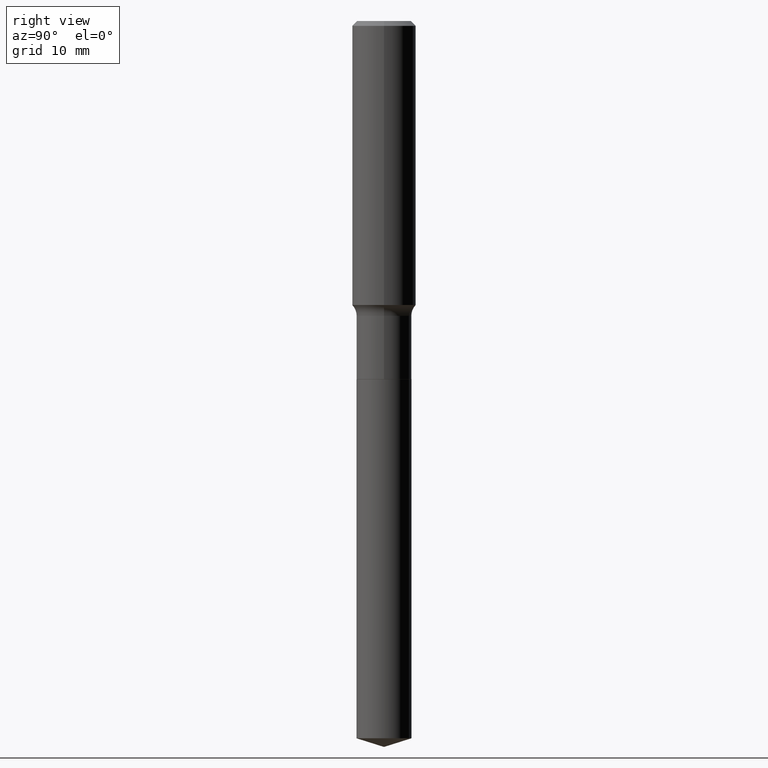
[diagram: clean part render]
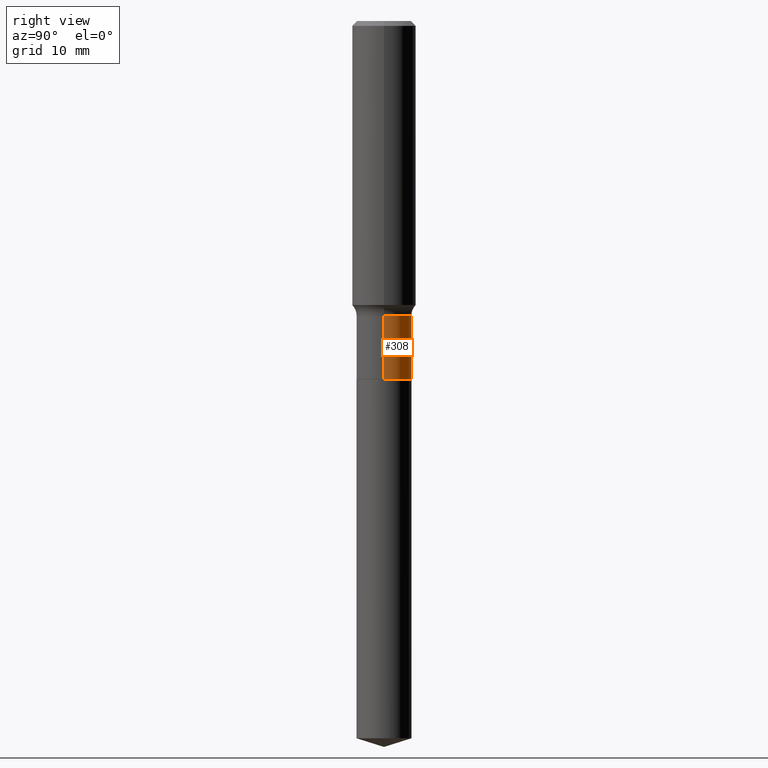
[diagram: same view with one face highlighted and labeled with its STEP entity id]
A machine part, right view. The second image highlights one B-rep face of the part: STEP entity #308.
In plain terms, the highlighted cylindrical surface (edge-blend (fillet) strip) has radius 3.4506 mm, axis along (-0, 0, 1).
Its self-contained STEP definition (entity closure, byte-faithful):
#10 = LINE ( 'NONE', #126, #236 ) ;
#26 = ORIENTED_EDGE ( 'NONE', *, *, #29, .F. ) ;
#29 = EDGE_CURVE ( 'NONE', #37, #221, #10, .T. ) ;
#34 = DIRECTION ( 'NONE',  ( 1.000000000000000000, -6.982962677686268288E-15, 0.000000000000000000 ) ) ;
#37 = VERTEX_POINT ( 'NONE', #461 ) ;
#54 = CARTESIAN_POINT ( 'NONE',  ( -0.1358499999999999708, -4.660551574747864359E-15, -1.455299999999999816 ) ) ;
#60 = DIRECTION ( 'NONE',  ( -2.445468806185136597E-29, 3.491481338843145583E-15, 1.000000000000000000 ) ) ;
#62 = DIRECTION ( 'NONE',  ( -2.445468806185136877E-29, 3.491481338843145188E-15, 1.000000000000000000 ) ) ;
#93 = CARTESIAN_POINT ( 'NONE',  ( -0.1358500000000000263, -4.660551574747864359E-15, -1.767300000000000315 ) ) ;
#126 = CARTESIAN_POINT ( 'NONE',  ( 0.1358499999999999708, -9.486354797636791575E-16, 6.624286149918777895E-30 ) ) ;
#129 = CARTESIAN_POINT ( 'NONE',  ( 0.000000000000000000, 0.000000000000000000, 0.000000000000000000 ) ) ;
#136 = VERTEX_POINT ( 'NONE', #54 ) ;
#144 = ORIENTED_EDGE ( 'NONE', *, *, #232, .T. ) ;
#178 = DIRECTION ( 'NONE',  ( 1.000000000000000000, -6.982962677686266711E-15, 4.876176775795936353E-29 ) ) ;
#185 = EDGE_CURVE ( 'NONE', #221, #136, #237, .T. ) ;
#193 = AXIS2_PLACEMENT_3D ( 'NONE', #364, #60, #439 ) ;
#202 = DIRECTION ( 'NONE',  ( -2.445468806185136877E-29, 3.491481338843145188E-15, 1.000000000000000000 ) ) ;
#212 = CARTESIAN_POINT ( 'NONE',  ( -0.1358499999999999708, 9.652723065300958949E-16, -6.682373320111289082E-30 ) ) ;
#218 = VERTEX_POINT ( 'NONE', #93 ) ;
#221 = VERTEX_POINT ( 'NONE', #368 ) ;
#231 = EDGE_LOOP ( 'NONE', ( #449, #144, #271, #26 ) ) ;
#232 = EDGE_CURVE ( 'NONE', #218, #136, #476, .T. ) ;
#236 = VECTOR ( 'NONE', #202, 39.37007874015748143 ) ;
#237 = CIRCLE ( 'NONE', #193, 0.1358499999999999708 ) ;
#260 = CIRCLE ( 'NONE', #302, 0.1358499999999999985 ) ;
#271 = ORIENTED_EDGE ( 'NONE', *, *, #185, .F. ) ;
#284 = DIRECTION ( 'NONE',  ( -2.445468806185136597E-29, 3.491481338843145583E-15, 1.000000000000000000 ) ) ;
#302 = AXIS2_PLACEMENT_3D ( 'NONE', #447, #374, #34 ) ;
#308 = ADVANCED_FACE ( 'NONE', ( #372 ), #483, .T. ) ;
#320 = VECTOR ( 'NONE', #62, 39.37007874015748143 ) ;
#364 = CARTESIAN_POINT ( 'NONE',  ( 3.558890753641229295E-29, -5.081152792418429447E-15, -1.455299999999999816 ) ) ;
#368 = CARTESIAN_POINT ( 'NONE',  ( 0.1358499999999999708, -6.029788272182108407E-15, -1.455299999999999816 ) ) ;
#372 = FACE_OUTER_BOUND ( 'NONE', #231, .T. ) ;
#374 = DIRECTION ( 'NONE',  ( -2.445468806185136597E-29, 3.491481338843145583E-15, 1.000000000000000000 ) ) ;
#439 = DIRECTION ( 'NONE',  ( 1.000000000000000000, -6.982962677686262766E-15, 0.000000000000000000 ) ) ;
#447 = CARTESIAN_POINT ( 'NONE',  ( 4.321877021170992240E-29, -6.170494970137492639E-15, -1.767300000000000315 ) ) ;
#449 = ORIENTED_EDGE ( 'NONE', *, *, #460, .T. ) ;
#460 = EDGE_CURVE ( 'NONE', #37, #218, #260, .T. ) ;
#461 = CARTESIAN_POINT ( 'NONE',  ( 0.1358499999999999985, -7.119130449901172388E-15, -1.767300000000000315 ) ) ;
#476 = LINE ( 'NONE', #212, #320 ) ;
#483 = CYLINDRICAL_SURFACE ( 'NONE', #488, 0.1358499999999999708 ) ;
#488 = AXIS2_PLACEMENT_3D ( 'NONE', #129, #284, #178 ) ;